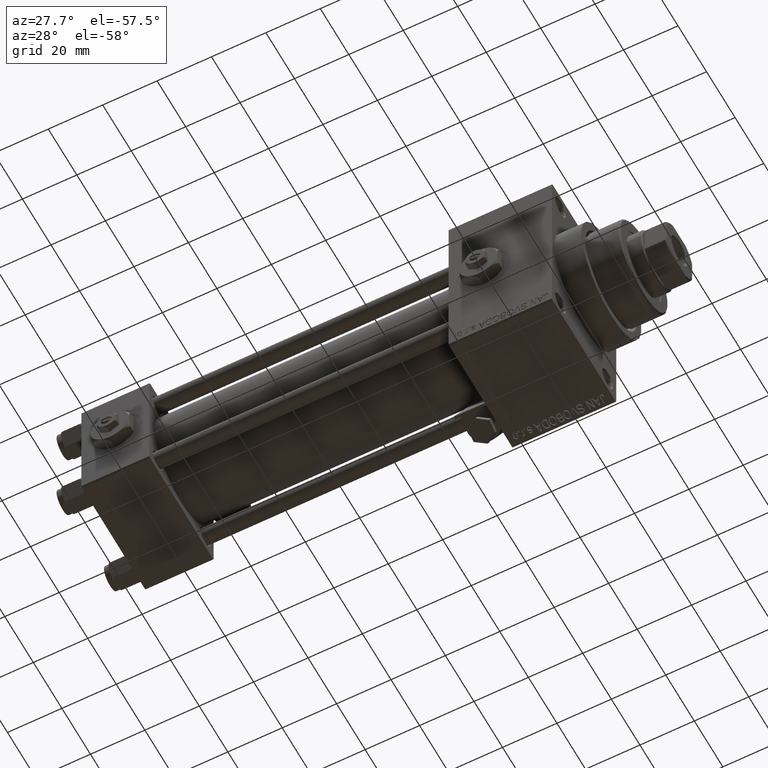
[diagram: clean part render]
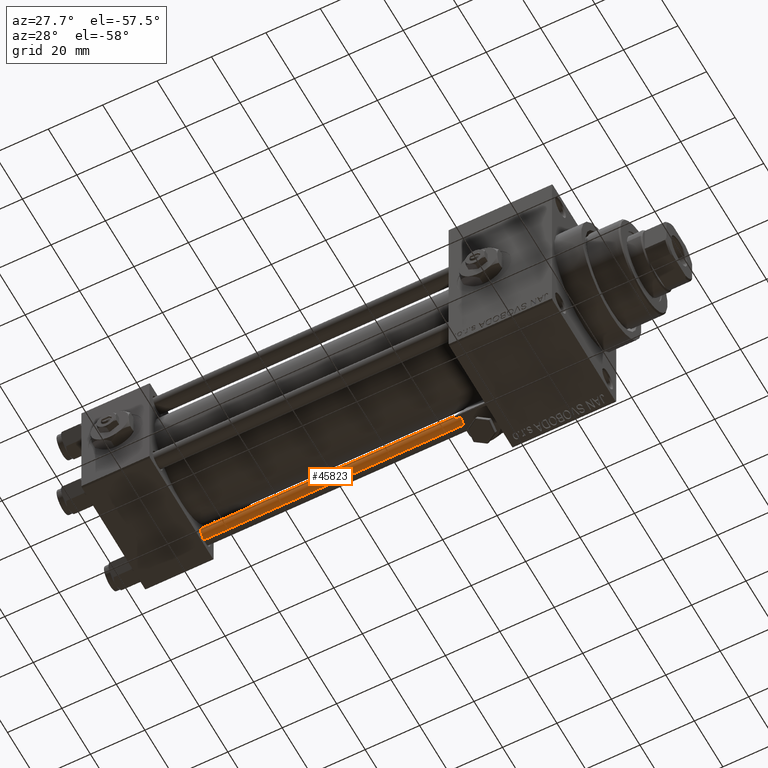
[diagram: same view with one face highlighted and labeled with its STEP entity id]
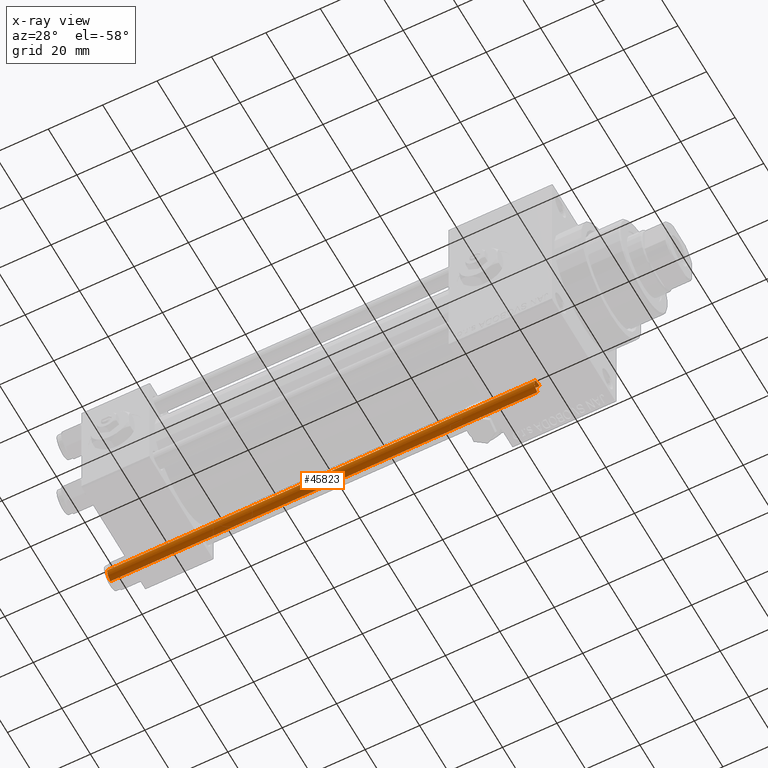
[diagram: x-ray of the same camera — body ghosted, the highlighted face saturated]
A machine part, auxiliary view. The second image highlights one B-rep face of the part: STEP entity #45823.
The next image is the same camera in x-ray: the body ghosted, the highlighted face saturated — about 0% of this face is hidden behind the body in this view.
In plain terms, the highlighted cylindrical surface (edge-blend (fillet) strip) has radius 3 mm, axis along (1, -0, 0).
Its self-contained STEP definition (entity closure, byte-faithful):
#504 = AXIS2_PLACEMENT_3D ( 'NONE', #27847, #32154, #19997 ) ;
#1360 = AXIS2_PLACEMENT_3D ( 'NONE', #5677, #13555, #9495 ) ;
#2194 = DIRECTION ( 'NONE',  ( -0.000000000000000000, -0.000000000000000000, -1.000000000000000000 ) ) ;
#3326 = FACE_OUTER_BOUND ( 'NONE', #19677, .T. ) ;
#3576 = CYLINDRICAL_SURFACE ( 'NONE', #11390, 3.000000000000000444 ) ;
#4184 = CARTESIAN_POINT ( 'NONE',  ( 3.000000000000000444, 3.673940397442060361E-16, 158.0000000000000000 ) ) ;
#5677 = CARTESIAN_POINT ( 'NONE',  ( 0.000000000000000000, 0.000000000000000000, 0.5000000000000281997 ) ) ;
#6486 = VERTEX_POINT ( 'NONE', #30871 ) ;
#8821 = CARTESIAN_POINT ( 'NONE',  ( -3.000000000000000444, 0.000000000000000000, 158.0000000000000000 ) ) ;
#9216 = VERTEX_POINT ( 'NONE', #20790 ) ;
#9495 = DIRECTION ( 'NONE',  ( 1.000000000000000000, 0.000000000000000000, 0.000000000000000000 ) ) ;
#10028 = ORIENTED_EDGE ( 'NONE', *, *, #12453, .F. ) ;
#10287 = CIRCLE ( 'NONE', #1360, 3.000000000000000444 ) ;
#11101 = ORIENTED_EDGE ( 'NONE', *, *, #36848, .T. ) ;
#11390 = AXIS2_PLACEMENT_3D ( 'NONE', #31221, #26669, #42900 ) ;
#12453 = EDGE_CURVE ( 'NONE', #45024, #48065, #46569, .T. ) ;
#13555 = DIRECTION ( 'NONE',  ( -0.000000000000000000, -0.000000000000000000, 1.000000000000000000 ) ) ;
#17465 = EDGE_CURVE ( 'NONE', #6486, #48065, #10287, .T. ) ;
#17964 = VECTOR ( 'NONE', #2194, 1000.000000000000000 ) ;
#19677 = EDGE_LOOP ( 'NONE', ( #10028, #11101, #47953, #41487 ) ) ;
#19997 = DIRECTION ( 'NONE',  ( 1.000000000000000000, 0.000000000000000000, 0.000000000000000000 ) ) ;
#20698 = VECTOR ( 'NONE', #50113, 1000.000000000000000 ) ;
#20790 = CARTESIAN_POINT ( 'NONE',  ( -3.000000000000000444, 0.000000000000000000, 157.5000000000000000 ) ) ;
#22385 = CIRCLE ( 'NONE', #504, 3.000000000000000444 ) ;
#26669 = DIRECTION ( 'NONE',  ( -0.000000000000000000, -0.000000000000000000, -1.000000000000000000 ) ) ;
#27847 = CARTESIAN_POINT ( 'NONE',  ( 0.000000000000000000, 0.000000000000000000, 157.5000000000000000 ) ) ;
#30871 = CARTESIAN_POINT ( 'NONE',  ( -3.000000000000000444, 0.000000000000000000, 0.5000000000000281997 ) ) ;
#31221 = CARTESIAN_POINT ( 'NONE',  ( 0.000000000000000000, 0.000000000000000000, 158.0000000000000000 ) ) ;
#32154 = DIRECTION ( 'NONE',  ( 0.000000000000000000, 0.000000000000000000, -1.000000000000000000 ) ) ;
#36848 = EDGE_CURVE ( 'NONE', #45024, #9216, #22385, .T. ) ;
#39078 = CARTESIAN_POINT ( 'NONE',  ( 3.000000000000000444, 3.673940397442060361E-16, 157.5000000000000000 ) ) ;
#41487 = ORIENTED_EDGE ( 'NONE', *, *, #17465, .T. ) ;
#42900 = DIRECTION ( 'NONE',  ( -1.000000000000000000, 0.000000000000000000, 0.000000000000000000 ) ) ;
#44333 = CARTESIAN_POINT ( 'NONE',  ( 3.000000000000000444, 3.673940397442060361E-16, 0.5000000000000281997 ) ) ;
#45024 = VERTEX_POINT ( 'NONE', #39078 ) ;
#45823 = ADVANCED_FACE ( 'NONE', ( #3326 ), #3576, .T. ) ;
#46569 = LINE ( 'NONE', #4184, #20698 ) ;
#47886 = LINE ( 'NONE', #8821, #17964 ) ;
#47953 = ORIENTED_EDGE ( 'NONE', *, *, #48006, .T. ) ;
#48006 = EDGE_CURVE ( 'NONE', #9216, #6486, #47886, .T. ) ;
#48065 = VERTEX_POINT ( 'NONE', #44333 ) ;
#50113 = DIRECTION ( 'NONE',  ( -0.000000000000000000, -0.000000000000000000, -1.000000000000000000 ) ) ;